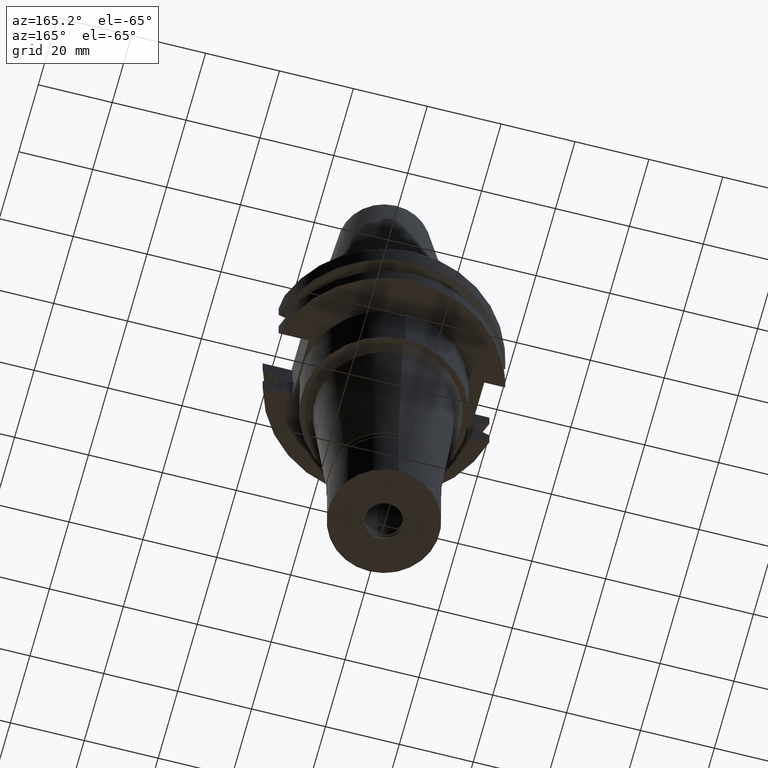
[diagram: clean part render]
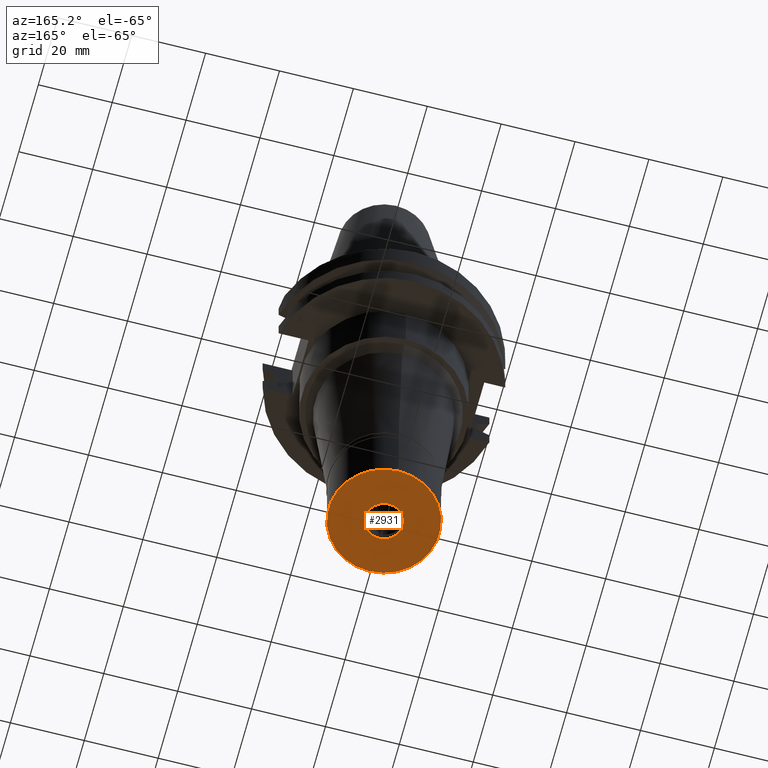
[diagram: same view with one face highlighted and labeled with its STEP entity id]
A machine part, auxiliary view. The second image highlights one B-rep face of the part: STEP entity #2931.
In plain terms, the highlighted planar face has unit normal (0, 0, -1).
Its self-contained STEP definition (entity closure, byte-faithful):
#50 = VERTEX_POINT ( 'NONE', #3098 ) ;
#140 = ORIENTED_EDGE ( 'NONE', *, *, #3013, .F. ) ;
#210 = CARTESIAN_POINT ( 'NONE',  ( 0.0000000000000000000, 0.0000000000000000000, -22.00000000000000000 ) ) ;
#251 = FACE_BOUND ( 'NONE', #3157, .T. ) ;
#365 = AXIS2_PLACEMENT_3D ( 'NONE', #2352, #2873, #557 ) ;
#372 = DIRECTION ( 'NONE',  ( 0.0000000000000000000, 0.0000000000000000000, 1.000000000000000000 ) ) ;
#557 = DIRECTION ( 'NONE',  ( 0.0000000000000000000, -1.000000000000000000, 0.0000000000000000000 ) ) ;
#622 = EDGE_CURVE ( 'NONE', #50, #2876, #1149, .T. ) ;
#669 = CARTESIAN_POINT ( 'NONE',  ( 0.0000000000000000000, 0.0000000000000000000, -22.00000000000000000 ) ) ;
#860 = VERTEX_POINT ( 'NONE', #2034 ) ;
#1096 = EDGE_CURVE ( 'NONE', #2041, #860, #3056, .T. ) ;
#1149 = CIRCLE ( 'NONE', #1420, 5.100000000001000622 ) ;
#1246 = CARTESIAN_POINT ( 'NONE',  ( 0.0000000000000000000, 5.100000000001000622, -22.00000000000000000 ) ) ;
#1368 = CARTESIAN_POINT ( 'NONE',  ( 0.0000000000000000000, 15.00000000000000000, -22.00000000000000000 ) ) ;
#1420 = AXIS2_PLACEMENT_3D ( 'NONE', #210, #2253, #2320 ) ;
#1621 = CIRCLE ( 'NONE', #365, 15.00000000000000000 ) ;
#1708 = ORIENTED_EDGE ( 'NONE', *, *, #622, .F. ) ;
#1713 = DIRECTION ( 'NONE',  ( 0.0000000000000000000, 0.0000000000000000000, -1.000000000000000000 ) ) ;
#1787 = ORIENTED_EDGE ( 'NONE', *, *, #1096, .F. ) ;
#1911 = CARTESIAN_POINT ( 'NONE',  ( 0.0000000000000000000, 0.0000000000000000000, -22.00000000000000000 ) ) ;
#2032 = DIRECTION ( 'NONE',  ( 0.0000000000000000000, -1.000000000000000000, 0.0000000000000000000 ) ) ;
#2034 = CARTESIAN_POINT ( 'NONE',  ( 0.0000000000000000000, -15.00000000000000000, -22.00000000000000000 ) ) ;
#2041 = VERTEX_POINT ( 'NONE', #1368 ) ;
#2049 = FACE_OUTER_BOUND ( 'NONE', #2990, .T. ) ;
#2253 = DIRECTION ( 'NONE',  ( 0.0000000000000000000, 0.0000000000000000000, -1.000000000000000000 ) ) ;
#2264 = AXIS2_PLACEMENT_3D ( 'NONE', #669, #1713, #2743 ) ;
#2286 = CARTESIAN_POINT ( 'NONE',  ( 0.0000000000000000000, 0.0000000000000000000, -22.00000000000000000 ) ) ;
#2320 = DIRECTION ( 'NONE',  ( 0.0000000000000000000, -1.000000000000000000, 0.0000000000000000000 ) ) ;
#2349 = EDGE_CURVE ( 'NONE', #2876, #50, #3028, .T. ) ;
#2352 = CARTESIAN_POINT ( 'NONE',  ( 0.0000000000000000000, 0.0000000000000000000, -22.00000000000000000 ) ) ;
#2743 = DIRECTION ( 'NONE',  ( 0.0000000000000000000, 1.000000000000000000, 0.0000000000000000000 ) ) ;
#2777 = AXIS2_PLACEMENT_3D ( 'NONE', #1911, #372, #2942 ) ;
#2794 = ORIENTED_EDGE ( 'NONE', *, *, #2349, .F. ) ;
#2873 = DIRECTION ( 'NONE',  ( 0.0000000000000000000, 0.0000000000000000000, 1.000000000000000000 ) ) ;
#2876 = VERTEX_POINT ( 'NONE', #1246 ) ;
#2931 = ADVANCED_FACE ( 'NONE', ( #2049, #251 ), #3104, .T. ) ;
#2942 = DIRECTION ( 'NONE',  ( 0.0000000000000000000, 1.000000000000000000, 0.0000000000000000000 ) ) ;
#2990 = EDGE_LOOP ( 'NONE', ( #1787, #140 ) ) ;
#3013 = EDGE_CURVE ( 'NONE', #860, #2041, #1621, .T. ) ;
#3028 = CIRCLE ( 'NONE', #2264, 5.100000000001000622 ) ;
#3056 = CIRCLE ( 'NONE', #2777, 15.00000000000000000 ) ;
#3098 = CARTESIAN_POINT ( 'NONE',  ( 0.0000000000000000000, -5.100000000001000622, -22.00000000000000000 ) ) ;
#3104 = PLANE ( 'NONE',  #3255 ) ;
#3157 = EDGE_LOOP ( 'NONE', ( #2794, #1708 ) ) ;
#3255 = AXIS2_PLACEMENT_3D ( 'NONE', #2286, #3357, #2032 ) ;
#3357 = DIRECTION ( 'NONE',  ( 0.0000000000000000000, 0.0000000000000000000, -1.000000000000000000 ) ) ;